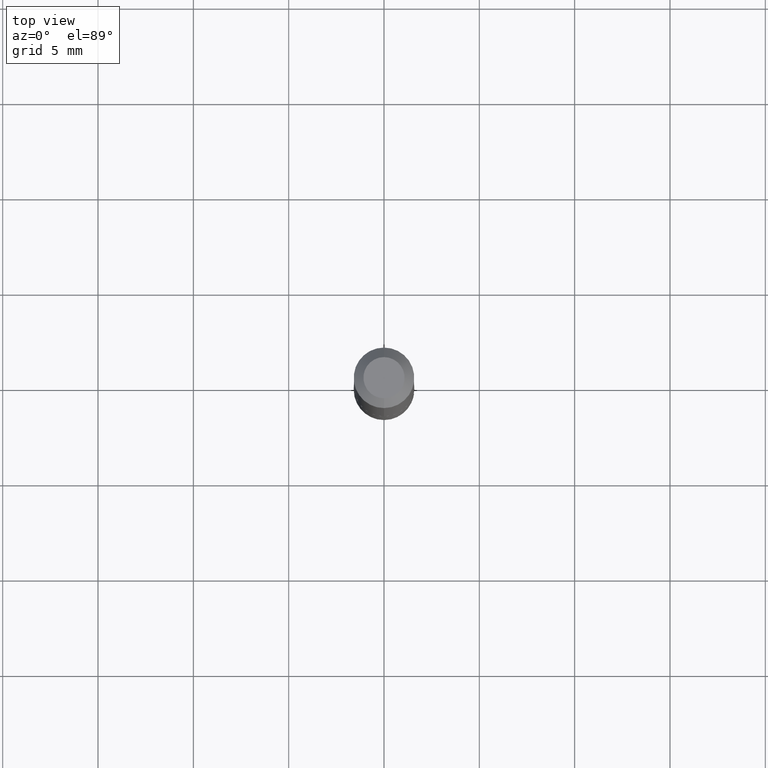
[diagram: clean part render]
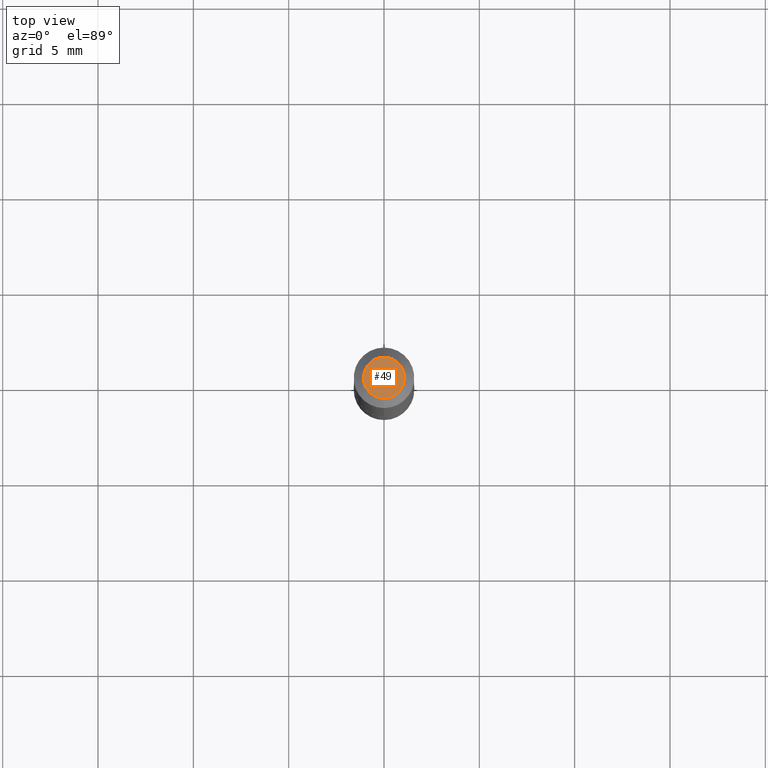
[diagram: same view with one face highlighted and labeled with its STEP entity id]
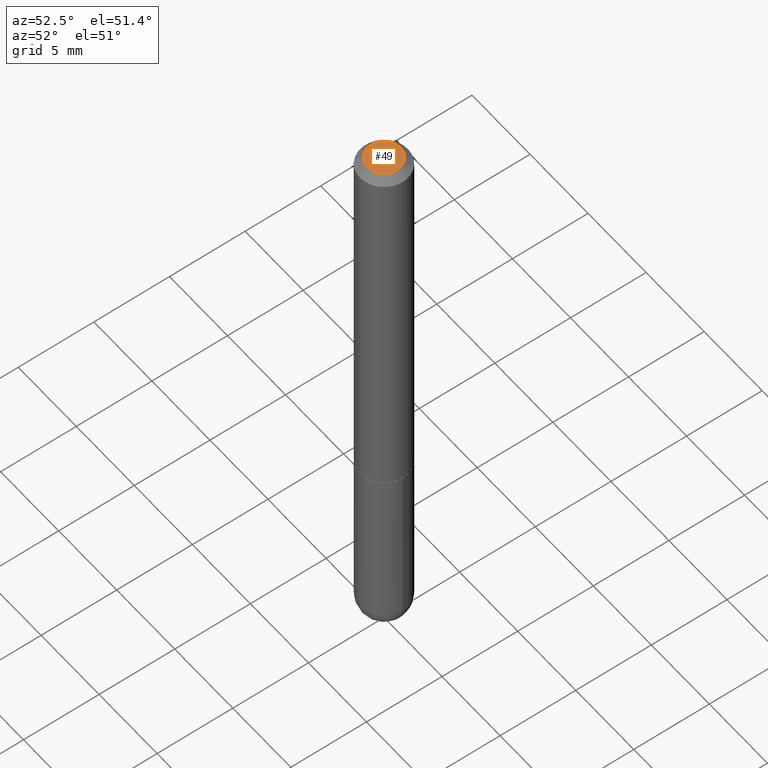
[diagram: same view with one face highlighted and labeled with its STEP entity id]
A machine part, top view. The second image highlights one B-rep face of the part: STEP entity #49.
A second angle (auxiliary view) of the same face is appended — the face is thin or edge-on in the first view.
In plain terms, the highlighted planar face has unit normal (0, -0, -1).
Its self-contained STEP definition (entity closure, byte-faithful):
#6 = ORIENTED_EDGE ( 'NONE', *, *, #96, .T. ) ;
#42 = CIRCLE ( 'NONE', #271, 0.04249999999999995448 ) ;
#46 = VERTEX_POINT ( 'NONE', #336 ) ;
#49 = ADVANCED_FACE ( 'NONE', ( #85 ), #142, .F. ) ;
#51 = DIRECTION ( 'NONE',  ( 6.982962677686265922E-15, 1.000000000000000000, -3.524453404813306686E-15 ) ) ;
#78 = ORIENTED_EDGE ( 'NONE', *, *, #214, .T. ) ;
#85 = FACE_OUTER_BOUND ( 'NONE', #161, .T. ) ;
#95 = VERTEX_POINT ( 'NONE', #167 ) ;
#96 = EDGE_CURVE ( 'NONE', #95, #46, #42, .T. ) ;
#107 = AXIS2_PLACEMENT_3D ( 'NONE', #185, #345, #147 ) ;
#142 = PLANE ( 'NONE',  #186 ) ;
#147 = DIRECTION ( 'NONE',  ( -6.982962677686266711E-15, -1.000000000000000000, 3.524453404813306686E-15 ) ) ;
#161 = EDGE_LOOP ( 'NONE', ( #78, #6 ) ) ;
#167 = CARTESIAN_POINT ( 'NONE',  ( -3.601761448830047996E-16, -0.04249999999999995448, 9.996843262709227020E-17 ) ) ;
#185 = CARTESIAN_POINT ( 'NONE',  ( 1.206882145362242579E-45, -1.755912188683491275E-31, -4.982083707747311235E-17 ) ) ;
#186 = AXIS2_PLACEMENT_3D ( 'NONE', #275, #402, #51 ) ;
#214 = EDGE_CURVE ( 'NONE', #46, #95, #358, .T. ) ;
#271 = AXIS2_PLACEMENT_3D ( 'NONE', #304, #339, #305 ) ;
#275 = CARTESIAN_POINT ( 'NONE',  ( 2.967759138016660098E-16, 0.04249999999999995448, -1.746996882433019110E-16 ) ) ;
#304 = CARTESIAN_POINT ( 'NONE',  ( 1.206882145362242579E-45, -1.755912188683491275E-31, -4.982083707747311235E-17 ) ) ;
#305 = DIRECTION ( 'NONE',  ( -6.982962677686266711E-15, -1.000000000000000000, 3.524453404813306686E-15 ) ) ;
#336 = CARTESIAN_POINT ( 'NONE',  ( 3.666055405785288149E-16, 0.04249999999999995448, -1.996101067820384703E-16 ) ) ;
#339 = DIRECTION ( 'NONE',  ( -2.422444535577552536E-29, 3.524453404813306292E-15, 1.000000000000000000 ) ) ;
#345 = DIRECTION ( 'NONE',  ( -2.422444535577552536E-29, 3.524453404813306292E-15, 1.000000000000000000 ) ) ;
#358 = CIRCLE ( 'NONE', #107, 0.04249999999999995448 ) ;
#402 = DIRECTION ( 'NONE',  ( 2.422444535577551975E-29, -3.524453404813306686E-15, -1.000000000000000000 ) ) ;